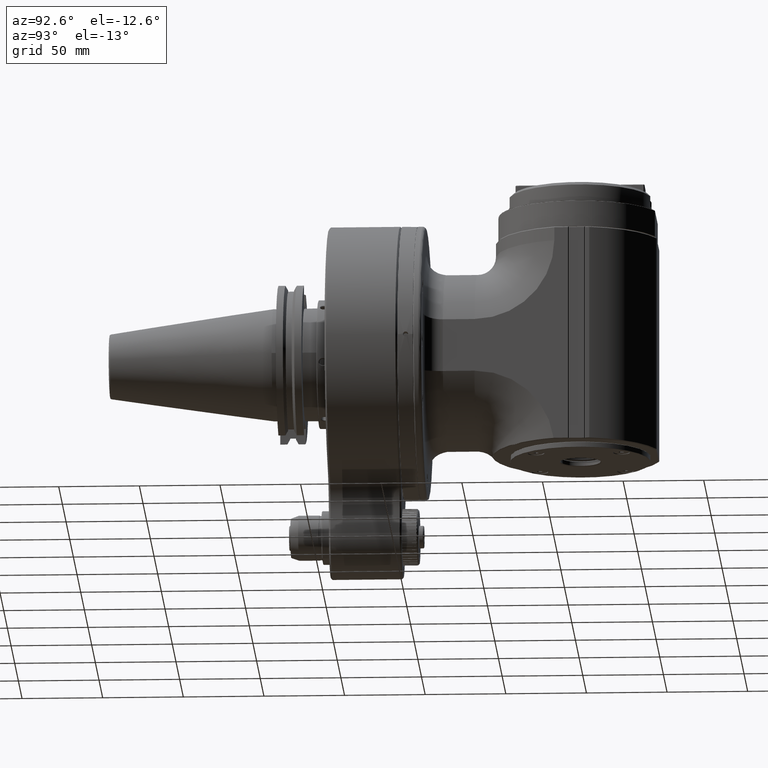
[diagram: clean part render]
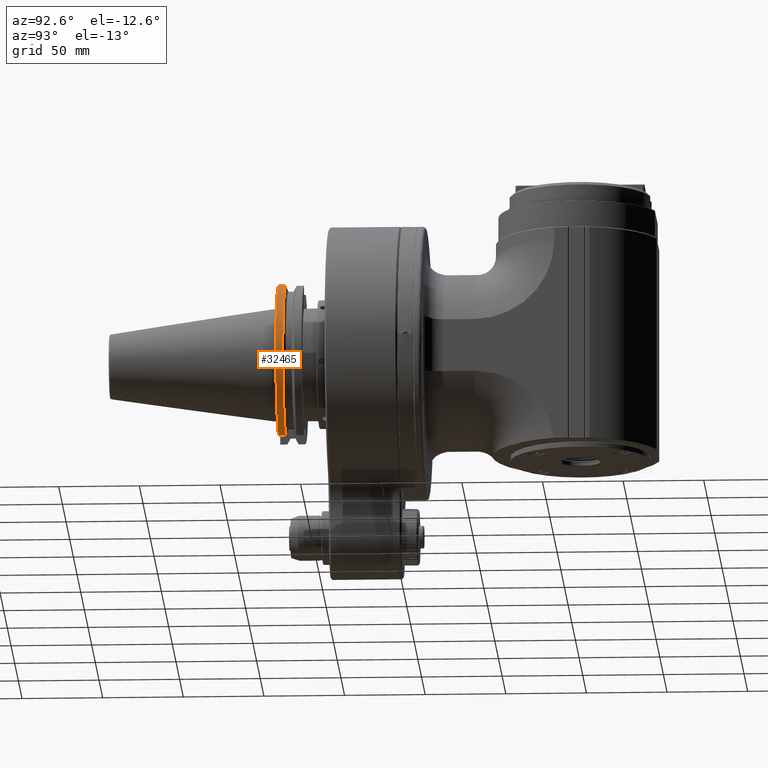
[diagram: same view with one face highlighted and labeled with its STEP entity id]
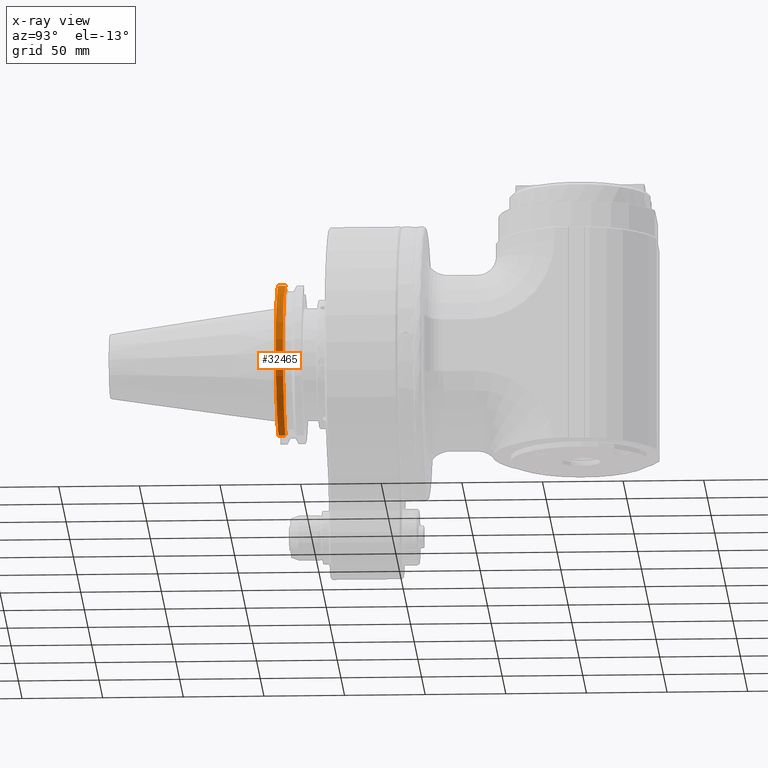
[diagram: x-ray of the same camera — body ghosted, the highlighted face saturated]
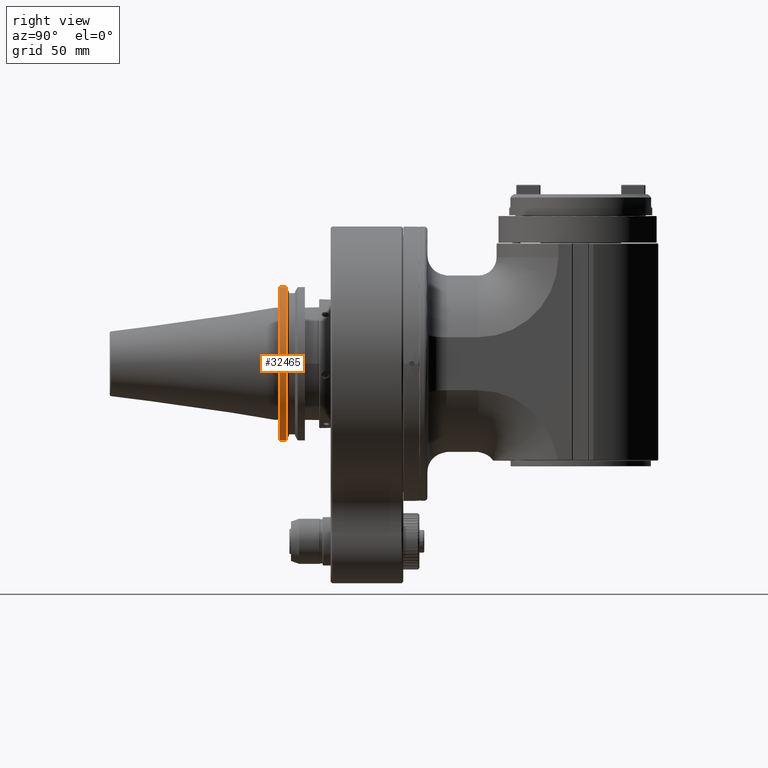
[diagram: same view with one face highlighted and labeled with its STEP entity id]
A machine part, auxiliary view. The second image highlights one B-rep face of the part: STEP entity #32465.
The next image is the same camera in x-ray: the body ghosted, the highlighted face saturated — about 0% of this face is hidden behind the body in this view.
A second angle (right view) of the same face is appended — the face is thin or edge-on in the first view.
In plain terms, the highlighted cylindrical surface (partial cylindrical patch) has radius 49.21 mm, axis along (0, -1, 0).
Its self-contained STEP definition (entity closure, byte-faithful):
#3708=LINE('',#66061,#6514);
#3716=LINE('',#66117,#6522);
#6514=VECTOR('',#44145,4.375);
#6522=VECTOR('',#44175,4.375);
#7019=CYLINDRICAL_SURFACE('',#35517,49.21);
#9053=FACE_OUTER_BOUND('',#11156,.T.);
#11156=EDGE_LOOP('',(#29045,#29046,#29047,#29048));
#12490=CIRCLE('',#35500,49.21);
#12498=CIRCLE('',#35515,49.21);
#15439=VERTEX_POINT('',#66052);
#15440=VERTEX_POINT('',#66054);
#15442=VERTEX_POINT('',#66060);
#15454=VERTEX_POINT('',#66109);
#19997=EDGE_CURVE('',#15439,#15440,#12490,.T.);
#20000=EDGE_CURVE('',#15442,#15440,#3708,.T.);
#20018=EDGE_CURVE('',#15454,#15439,#3716,.T.);
#20023=EDGE_CURVE('',#15454,#15442,#12498,.T.);
#29045=ORIENTED_EDGE('',*,*,#20023,.T.);
#29046=ORIENTED_EDGE('',*,*,#20000,.T.);
#29047=ORIENTED_EDGE('',*,*,#19997,.F.);
#29048=ORIENTED_EDGE('',*,*,#20018,.F.);
#32465=ADVANCED_FACE('',(#9053),#7019,.T.);
#35500=AXIS2_PLACEMENT_3D('',#66055,#44138,#44139);
#35515=AXIS2_PLACEMENT_3D('',#66125,#44182,#44183);
#35517=AXIS2_PLACEMENT_3D('',#66127,#44186,#44187);
#44138=DIRECTION('center_axis',(0.,-1.,0.));
#44139=DIRECTION('ref_axis',(0.263157894736813,0.,-0.964752777885448));
#44145=DIRECTION('',(0.,-1.,0.));
#44175=DIRECTION('',(0.,-1.,0.));
#44182=DIRECTION('center_axis',(0.,-1.,0.));
#44183=DIRECTION('ref_axis',(0.263157894736813,0.,-0.964752777885448));
#44186=DIRECTION('center_axis',(0.,-1.,0.));
#44187=DIRECTION('ref_axis',(1.,0.,-1.22464679914735E-16));
#66052=CARTESIAN_POINT('',(12.95,-76.8,-47.47548419974));
#66054=CARTESIAN_POINT('',(12.95,-76.8,47.47548419974));
#66055=CARTESIAN_POINT('Origin',(0.,-76.8,0.));
#66060=CARTESIAN_POINT('',(12.95,-72.425,47.47548419974));
#66061=CARTESIAN_POINT('',(12.95,-72.425,47.47548419974));
#66109=CARTESIAN_POINT('',(12.95,-72.425,-47.47548419974));
#66117=CARTESIAN_POINT('',(12.95,-72.425,-47.47548419974));
#66125=CARTESIAN_POINT('Origin',(0.,-72.425,0.));
#66127=CARTESIAN_POINT('Origin',(0.,-28.71,0.));